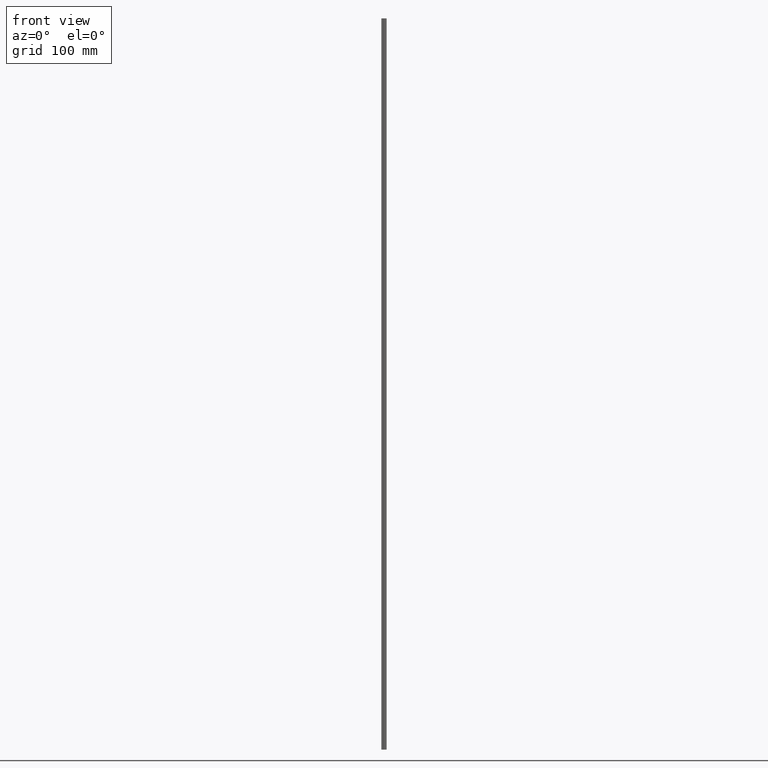
[diagram: clean part render]
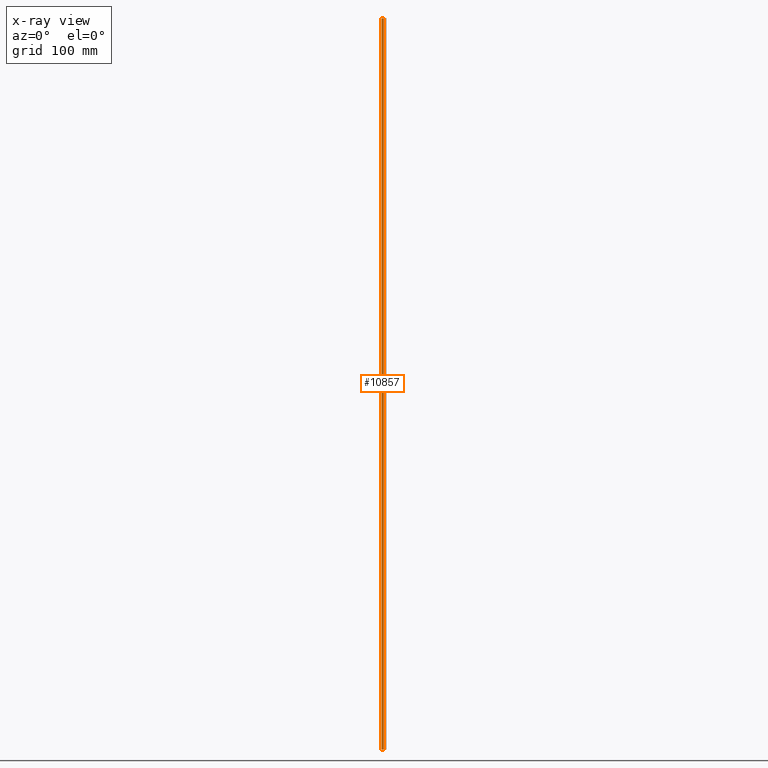
[diagram: x-ray — body ghosted, one internal face saturated and labeled with its STEP entity id]
A machine part, front view, then the same camera in x-ray: the body is ghosted and one INTERNAL B-rep face — a face not visible from any outside direction — is saturated and labeled: STEP entity #10857.
In plain terms, the highlighted planar face has unit normal (-0.2426, 0.9701, 0).
Its self-contained STEP definition (entity closure, byte-faithful):
#263 = VECTOR ( 'NONE', #5894, 1000.000000000000000 ) ;
#336 = DIRECTION ( 'NONE',  ( -0.9701265964901147898, -0.2425992307953713512, 0.000000000000000000 ) ) ;
#459 = PLANE ( 'NONE',  #7876 ) ;
#691 = DIRECTION ( 'NONE',  ( 0.9701265964901147898, 0.2425992307953713512, 0.000000000000000000 ) ) ;
#779 = EDGE_CURVE ( 'NONE', #6628, #969, #11832, .T. ) ;
#969 = VERTEX_POINT ( 'NONE', #7478 ) ;
#2122 = CARTESIAN_POINT ( 'NONE',  ( -3.324541039364857120, 21.62216980804913291, -500.0000000000000000 ) ) ;
#2692 = EDGE_CURVE ( 'NONE', #6628, #11413, #14394, .T. ) ;
#3648 = FACE_OUTER_BOUND ( 'NONE', #12724, .T. ) ;
#3662 = CARTESIAN_POINT ( 'NONE',  ( -3.324541039364857120, 21.62216980804913291, 500.0000000000000000 ) ) ;
#4155 = LINE ( 'NONE', #7529, #263 ) ;
#4162 = VECTOR ( 'NONE', #7040, 1000.000000000000114 ) ;
#4802 = CARTESIAN_POINT ( 'NONE',  ( -3.324541039364857120, 21.62216980804913291, 500.0000000000000000 ) ) ;
#5510 = CARTESIAN_POINT ( 'NONE',  ( -0.6438406547625421528, 22.29253164912252672, -500.0000000000000000 ) ) ;
#5894 = DIRECTION ( 'NONE',  ( -0.000000000000000000, -0.000000000000000000, -1.000000000000000000 ) ) ;
#6628 = VERTEX_POINT ( 'NONE', #11258 ) ;
#7040 = DIRECTION ( 'NONE',  ( 0.9701265964901147898, 0.2425992307953713512, 0.000000000000000000 ) ) ;
#7216 = VECTOR ( 'NONE', #691, 1000.000000000000114 ) ;
#7478 = CARTESIAN_POINT ( 'NONE',  ( -0.6438406547625421528, 22.29253164912252672, 500.0000000000000000 ) ) ;
#7529 = CARTESIAN_POINT ( 'NONE',  ( -0.6438406547625421528, 22.29253164912252672, 500.0000000000000000 ) ) ;
#7876 = AXIS2_PLACEMENT_3D ( 'NONE', #4802, #17713, #336 ) ;
#10857 = ADVANCED_FACE ( 'NONE', ( #3648 ), #459, .F. ) ;
#11258 = CARTESIAN_POINT ( 'NONE',  ( -3.324541039364856232, 21.62216980804913291, 500.0000000000000000 ) ) ;
#11413 = VERTEX_POINT ( 'NONE', #16261 ) ;
#11755 = VERTEX_POINT ( 'NONE', #5510 ) ;
#11832 = LINE ( 'NONE', #3662, #4162 ) ;
#11919 = DIRECTION ( 'NONE',  ( -0.000000000000000000, -0.000000000000000000, -1.000000000000000000 ) ) ;
#12346 = EDGE_CURVE ( 'NONE', #11413, #11755, #18350, .T. ) ;
#12724 = EDGE_LOOP ( 'NONE', ( #14626, #14697, #12735, #14332 ) ) ;
#12735 = ORIENTED_EDGE ( 'NONE', *, *, #779, .F. ) ;
#13277 = VECTOR ( 'NONE', #11919, 1000.000000000000000 ) ;
#14332 = ORIENTED_EDGE ( 'NONE', *, *, #2692, .T. ) ;
#14394 = LINE ( 'NONE', #15029, #13277 ) ;
#14626 = ORIENTED_EDGE ( 'NONE', *, *, #12346, .T. ) ;
#14697 = ORIENTED_EDGE ( 'NONE', *, *, #15426, .F. ) ;
#15029 = CARTESIAN_POINT ( 'NONE',  ( -3.324541039364856232, 21.62216980804913291, 500.0000000000000000 ) ) ;
#15426 = EDGE_CURVE ( 'NONE', #969, #11755, #4155, .T. ) ;
#16261 = CARTESIAN_POINT ( 'NONE',  ( -3.324541039364856232, 21.62216980804913291, -500.0000000000000000 ) ) ;
#17713 = DIRECTION ( 'NONE',  ( -0.2425992307953713789, 0.9701265964901149008, 0.000000000000000000 ) ) ;
#18350 = LINE ( 'NONE', #2122, #7216 ) ;